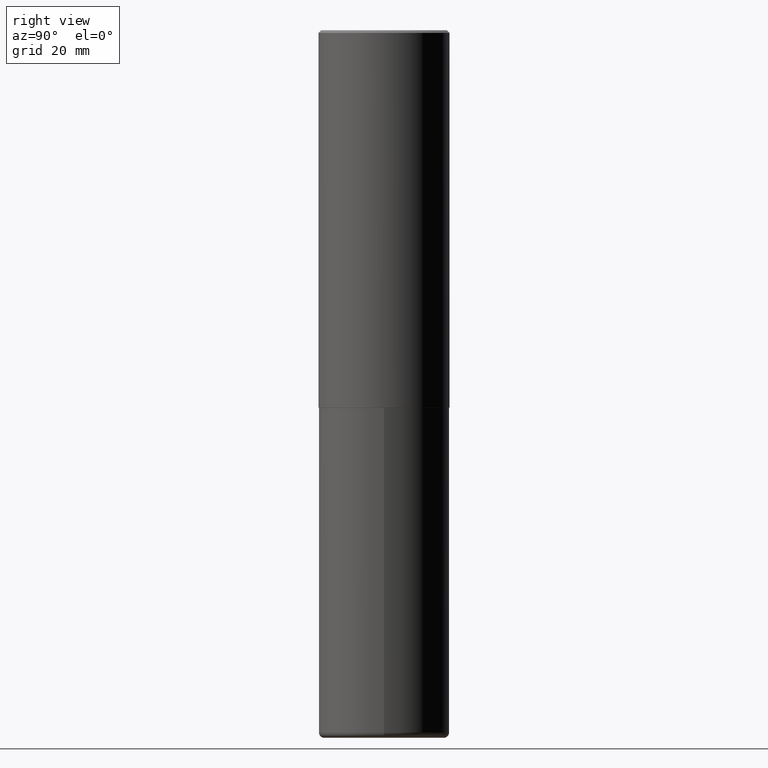
[diagram: clean part render]
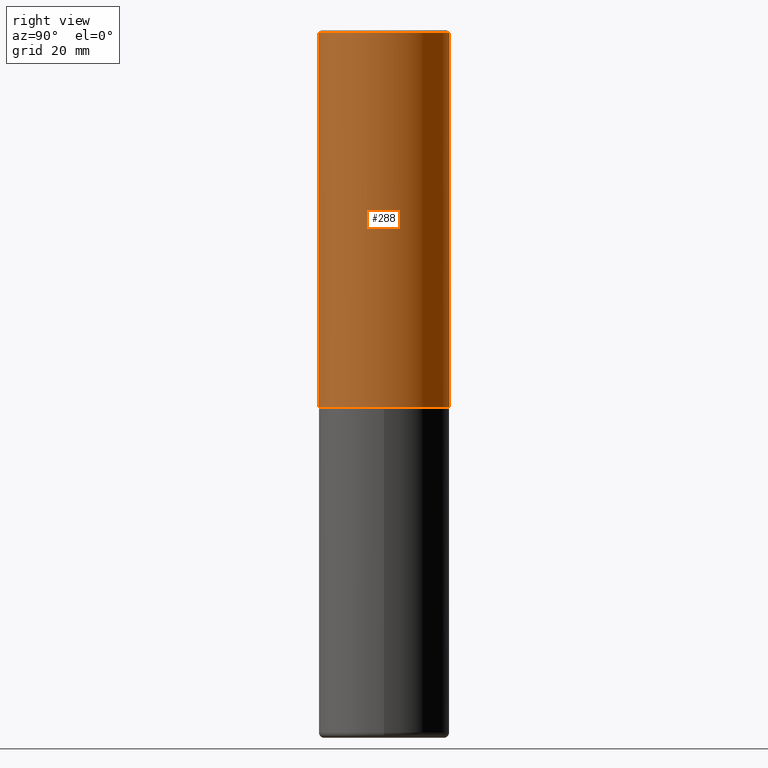
[diagram: same view with one face highlighted and labeled with its STEP entity id]
A machine part, right view. The second image highlights one B-rep face of the part: STEP entity #288.
In plain terms, the highlighted cylindrical surface (partial cylindrical patch) has radius 12.5006 mm, axis along (-0, 0, 1).
Its self-contained STEP definition (entity closure, byte-faithful):
#2 = CARTESIAN_POINT ( 'NONE',  ( -3.376394089603258656E-15, -0.4921500000000000874, -0.01999999999999838712 ) ) ;
#8 = VECTOR ( 'NONE', #300, 39.37007874015748143 ) ;
#10 = CARTESIAN_POINT ( 'NONE',  ( 6.929045905378983914E-29, -9.894783109142616722E-15, -2.833700000000000330 ) ) ;
#11 = CARTESIAN_POINT ( 'NONE',  ( -3.436665081823228329E-15, -0.4921500000000101904, -2.833699999999998997 ) ) ;
#13 = DIRECTION ( 'NONE',  ( -6.982962677686265922E-15, -1.000000000000000000, 3.495297233588267070E-15 ) ) ;
#17 = ORIENTED_EDGE ( 'NONE', *, *, #106, .T. ) ;
#22 = LINE ( 'NONE', #170, #8 ) ;
#36 = ORIENTED_EDGE ( 'NONE', *, *, #337, .F. ) ;
#37 = VERTEX_POINT ( 'NONE', #85 ) ;
#38 = DIRECTION ( 'NONE',  ( -6.982962677686266711E-15, -1.000000000000000000, 3.491824508290437824E-15 ) ) ;
#45 = DIRECTION ( 'NONE',  ( -2.445229172240879899E-29, 3.491824508290438613E-15, 1.000000000000000000 ) ) ;
#46 = CARTESIAN_POINT ( 'NONE',  ( -3.436665081823297354E-15, -0.4921500000000001984, 1.718501431755139742E-15 ) ) ;
#85 = CARTESIAN_POINT ( 'NONE',  ( 3.436665081823296565E-15, 0.4921499999999999764, -0.02000000000000182535 ) ) ;
#86 = AXIS2_PLACEMENT_3D ( 'NONE', #367, #211, #13 ) ;
#97 = ORIENTED_EDGE ( 'NONE', *, *, #379, .F. ) ;
#103 = CARTESIAN_POINT ( 'NONE',  ( 0.000000000000000000, 0.000000000000000000, 0.000000000000000000 ) ) ;
#106 = EDGE_CURVE ( 'NONE', #226, #241, #117, .T. ) ;
#117 = CIRCLE ( 'NONE', #206, 0.4921500000000003094 ) ;
#161 = VECTOR ( 'NONE', #45, 39.37007874015748143 ) ;
#170 = CARTESIAN_POINT ( 'NONE',  ( 3.496936074043333686E-15, 0.4921500000000001984, -1.718501431755139742E-15 ) ) ;
#193 = DIRECTION ( 'NONE',  ( -2.445229172240879899E-29, 3.491824508290438219E-15, 1.000000000000000000 ) ) ;
#203 = EDGE_LOOP ( 'NONE', ( #17, #263, #97, #36 ) ) ;
#206 = AXIS2_PLACEMENT_3D ( 'NONE', #10, #193, #257 ) ;
#211 = DIRECTION ( 'NONE',  ( -2.445229172240879899E-29, 3.491824508290438219E-15, 1.000000000000000000 ) ) ;
#226 = VERTEX_POINT ( 'NONE', #11 ) ;
#235 = VERTEX_POINT ( 'NONE', #2 ) ;
#241 = VERTEX_POINT ( 'NONE', #306 ) ;
#254 = AXIS2_PLACEMENT_3D ( 'NONE', #103, #399, #38 ) ;
#257 = DIRECTION ( 'NONE',  ( -6.982962677686265922E-15, -1.000000000000000000, 3.330506545156063891E-15 ) ) ;
#263 = ORIENTED_EDGE ( 'NONE', *, *, #398, .T. ) ;
#274 = FACE_OUTER_BOUND ( 'NONE', #203, .T. ) ;
#278 = CIRCLE ( 'NONE', #86, 0.4921500000000000319 ) ;
#288 = ADVANCED_FACE ( 'NONE', ( #274 ), #406, .T. ) ;
#300 = DIRECTION ( 'NONE',  ( -2.445229172240879899E-29, 3.491824508290438613E-15, 1.000000000000000000 ) ) ;
#306 = CARTESIAN_POINT ( 'NONE',  ( 3.496936074043369579E-15, 0.4921499999999904840, -2.833700000000002106 ) ) ;
#337 = EDGE_CURVE ( 'NONE', #226, #235, #338, .T. ) ;
#338 = LINE ( 'NONE', #46, #161 ) ;
#367 = CARTESIAN_POINT ( 'NONE',  ( 4.890458344481786073E-31, -6.983649016580912824E-17, -0.02000000000000010797 ) ) ;
#379 = EDGE_CURVE ( 'NONE', #235, #37, #278, .T. ) ;
#398 = EDGE_CURVE ( 'NONE', #241, #37, #22, .T. ) ;
#399 = DIRECTION ( 'NONE',  ( -2.445229172240879899E-29, 3.491824508290438219E-15, 1.000000000000000000 ) ) ;
#406 = CYLINDRICAL_SURFACE ( 'NONE', #254, 0.4921500000000001984 ) ;